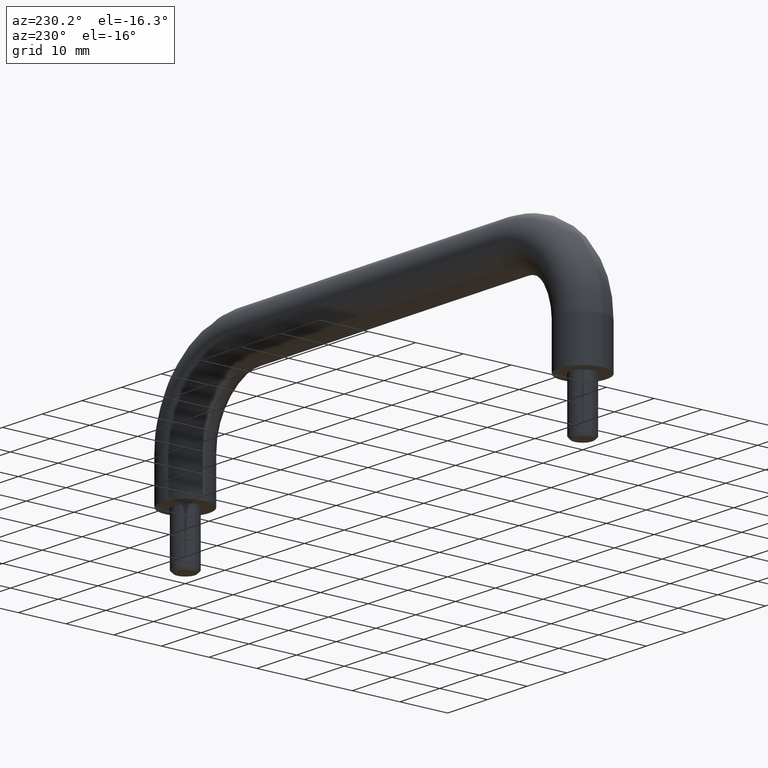
[diagram: clean part render]
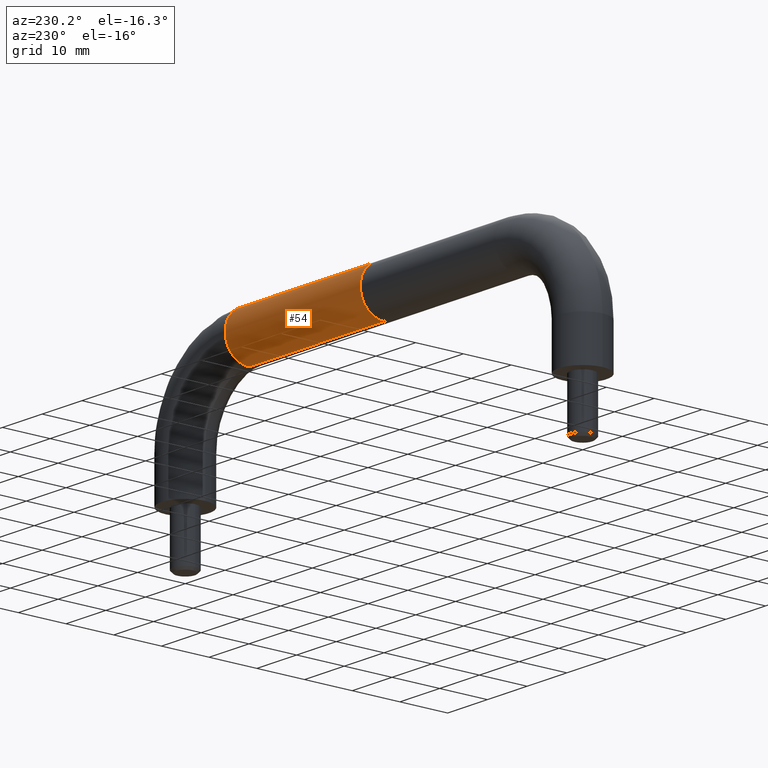
[diagram: same view with one face highlighted and labeled with its STEP entity id]
A machine part, auxiliary view. The second image highlights one B-rep face of the part: STEP entity #54.
In plain terms, the highlighted cylindrical surface (edge-blend (fillet) strip) has radius 5 mm, axis along (1, -0, 0).
Its self-contained STEP definition (entity closure, byte-faithful):
#54=ADVANCED_FACE('',(#207),#206,.T.);
#206=CYLINDRICAL_SURFACE('',#573,5.00000000000E+00);
#207=FACE_OUTER_BOUND('',#574,.T.);
#570=CARTESIAN_POINT('',(1.70000000000E+01,-9.33697563710E-11,5.00000000000E+00));
#571=DIRECTION('',(1.00000000000E+00,-0.00000000000E+00,0.00000000000E+00));
#572=DIRECTION('',(0.00000000000E+00,-4.44089209850E-16,-1.00000000000E+00));
#573=AXIS2_PLACEMENT_3D('',#570,#571,#572);
#574=EDGE_LOOP('',(#684,#685,#686,#687));
#684=ORIENTED_EDGE('',*,*,#735,.F.);
#685=ORIENTED_EDGE('',*,*,#758,.F.);
#686=ORIENTED_EDGE('',*,*,#757,.F.);
#687=ORIENTED_EDGE('',*,*,#759,.T.);
#735=EDGE_CURVE('',#771,#770,#846,.T.);
#757=EDGE_CURVE('',#979,#972,#992,.T.);
#758=EDGE_CURVE('',#972,#771,#998,.T.);
#759=EDGE_CURVE('',#979,#770,#1004,.T.);
#770=VERTEX_POINT('',#1072);
#771=VERTEX_POINT('',#1073);
#846=CIRCLE('',#1134,5.00000000000E+00);
#972=VERTEX_POINT('',#1216);
#979=VERTEX_POINT('',#1219);
#992=CIRCLE('',#1229,5.00000000000E+00);
#998=(BOUNDED_CURVE() B_SPLINE_CURVE(1,(#1230,#1231),.UNSPECIFIED.,.F.,.F.) B_SPLINE_CURVE_WITH_KNOTS((2,2),(8.33333335810E-02,9.16666666255E-01),.UNSPECIFIED.) CURVE() GEOMETRIC_REPRESENTATION_ITEM() RATIONAL_B_SPLINE_CURVE((1.00000000000E+00,1.00000000000E+00)) REPRESENTATION_ITEM('') );
#1004=(BOUNDED_CURVE() B_SPLINE_CURVE(1,(#1232,#1233),.UNSPECIFIED.,.F.,.F.) B_SPLINE_CURVE_WITH_KNOTS((2,2),(8.33333333342E-02,9.16666666667E-01),.UNSPECIFIED.) CURVE() GEOMETRIC_REPRESENTATION_ITEM() RATIONAL_B_SPLINE_CURVE((7.50000000000E-01,7.50000000000E-01)) REPRESENTATION_ITEM('') );
#1072=CARTESIAN_POINT('',(3.39999999999E+01,-9.33694603115E-11,1.00000000000E+01));
#1073=CARTESIAN_POINT('',(3.39999999999E+01,-9.33697563710E-11,-1.98951966013E-13));
#1131=CARTESIAN_POINT('',(3.39999999999E+01,-9.33697563710E-11,5.00000000000E+00));
#1132=DIRECTION('',(1.00000000000E+00,0.00000000000E+00,0.00000000000E+00));
#1133=DIRECTION('',(-0.00000000000E+00,-0.00000000000E+00,1.00000000000E+00));
#1134=AXIS2_PLACEMENT_3D('',#1131,#1132,#1133);
#1216=CARTESIAN_POINT('',(5.10702585001E-15,-9.33697563710E-11,-2.96059473233E-16));
#1219=CARTESIAN_POINT('',(-6.91164903089E-11,-9.33706647337E-11,1.00000000000E+01));
#1226=CARTESIAN_POINT('',(-3.45556916415E-11,-9.33697563710E-11,5.00000000000E+00));
#1227=DIRECTION('',(-1.00000000000E+00,8.96831017168E-44,-6.91215973347E-12));
#1228=DIRECTION('',(-6.91215973347E-12,-5.92118999992E-17,1.00000000000E+00));
#1229=AXIS2_PLACEMENT_3D('',#1226,#1227,#1228);
#1230=CARTESIAN_POINT('',(1.00364707656E-08,-9.33719768170E-11,0.00000000000E+00));
#1231=CARTESIAN_POINT('',(3.39999999831E+01,-9.33719768170E-11,0.00000000000E+00));
#1232=CARTESIAN_POINT('',(-3.45560617158E-11,-9.33679800141E-11,1.00000000000E+01));
#1233=CARTESIAN_POINT('',(3.39999999999E+01,-9.33679800141E-11,1.00000000000E+01));